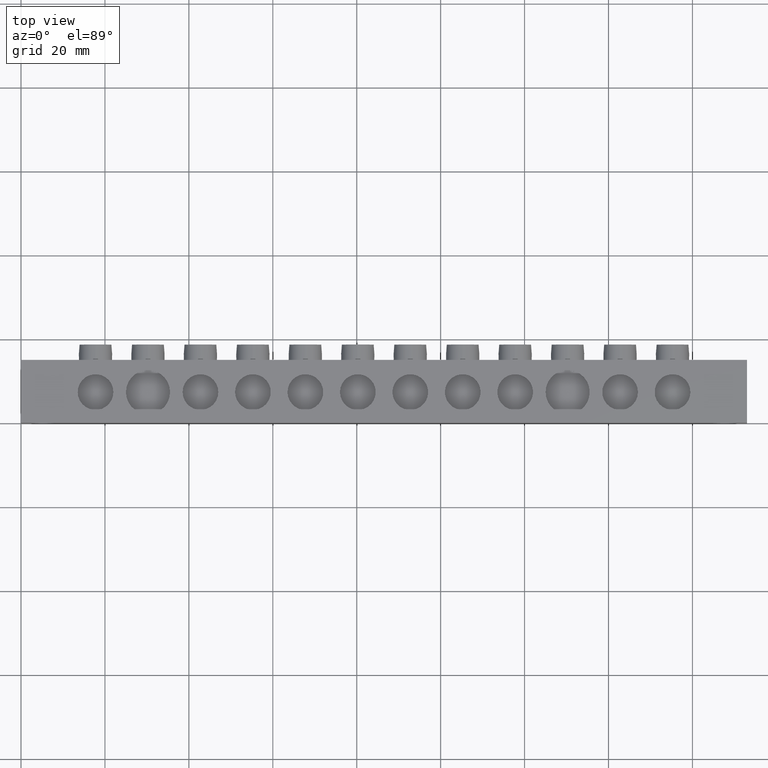
[diagram: clean part render]
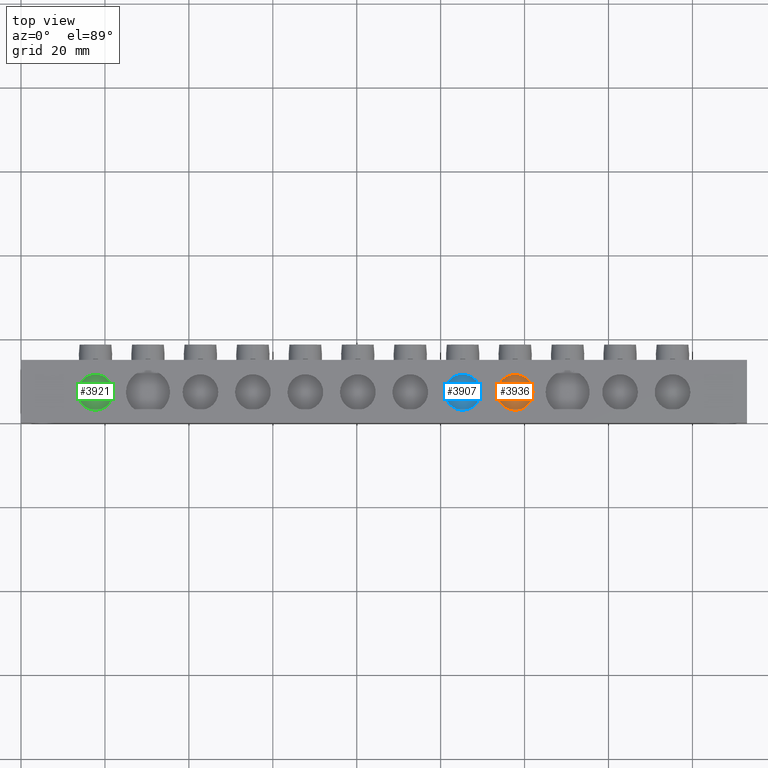
[diagram: same view with three faces highlighted in distinct colors, each labeled with its STEP entity id]
A machine part, top view with three faces highlighted in distinct colors.
Their STEP definitions:

[orange] entity #3936 — the highlighted planar face has unit normal (0, 0, -1).
#423 = CARTESIAN_POINT ( 'NONE',  ( 117.7500000000000300, 7.299999999999992700, -0.5000000000000004400 ) ) ;
#427 = DIRECTION ( 'NONE',  ( 0.0000000000000000000, 0.0000000000000000000, 1.000000000000000000 ) ) ;
#438 = DIRECTION ( 'NONE',  ( 1.000000000000000000, 0.0000000000000000000, 0.0000000000000000000 ) ) ;
#1793 = AXIS2_PLACEMENT_3D ( 'NONE', #423, #427, #438 ) ;
#1797 = CIRCLE ( 'NONE', #1793, 4.250000000000003600 ) ;
#2943 = CIRCLE ( 'NONE', #2982, 4.250000000000003600 ) ;
#2982 = AXIS2_PLACEMENT_3D ( 'NONE', #4697, #4722, #4709 ) ;
#3465 = AXIS2_PLACEMENT_3D ( 'NONE', #5526, #5567, #5522 ) ;
#3827 = CARTESIAN_POINT ( 'NONE',  ( 113.5000000000000100, 7.299999999999993600, -0.5000000000000004400 ) ) ;
#3936 = ADVANCED_FACE ( 'NONE', ( #6490 ), #5559, .F. ) ;
#4314 = EDGE_CURVE ( 'NONE', #7460, #7507, #2943, .T. ) ;
#4697 = CARTESIAN_POINT ( 'NONE',  ( 117.7500000000000300, 7.299999999999992700, -0.5000000000000004400 ) ) ;
#4709 = DIRECTION ( 'NONE',  ( 1.000000000000000000, 0.0000000000000000000, 0.0000000000000000000 ) ) ;
#4722 = DIRECTION ( 'NONE',  ( 0.0000000000000000000, 0.0000000000000000000, 1.000000000000000000 ) ) ;
#4888 = ORIENTED_EDGE ( 'NONE', *, *, #4314, .T. ) ;
#4937 = ORIENTED_EDGE ( 'NONE', *, *, #8230, .T. ) ;
#5522 = DIRECTION ( 'NONE',  ( -1.000000000000000000, 0.0000000000000000000, -0.0000000000000000000 ) ) ;
#5526 = CARTESIAN_POINT ( 'NONE',  ( 161.8674712474905800, 0.5000000000000038900, -0.5000000000000000000 ) ) ;
#5559 = PLANE ( 'NONE',  #3465 ) ;
#5567 = DIRECTION ( 'NONE',  ( 0.0000000000000000000, 0.0000000000000000000, -1.000000000000000000 ) ) ;
#6490 = FACE_OUTER_BOUND ( 'NONE', #6893, .T. ) ;
#6893 = EDGE_LOOP ( 'NONE', ( #4937, #4888 ) ) ;
#7460 = VERTEX_POINT ( 'NONE', #3827 ) ;
#7507 = VERTEX_POINT ( 'NONE', #7938 ) ;
#7938 = CARTESIAN_POINT ( 'NONE',  ( 122.0000000000000300, 7.299999999999992700, -0.5000000000000004400 ) ) ;
#8230 = EDGE_CURVE ( 'NONE', #7507, #7460, #1797, .T. ) ;

[blue] entity #3907 — the highlighted planar face has unit normal (0, 0, -1).
#1592 = PLANE ( 'NONE',  #3452 ) ;
#1617 = DIRECTION ( 'NONE',  ( -1.000000000000000000, 0.0000000000000000000, -0.0000000000000000000 ) ) ;
#1622 = FACE_OUTER_BOUND ( 'NONE', #6904, .T. ) ;
#1629 = DIRECTION ( 'NONE',  ( 0.0000000000000000000, 0.0000000000000000000, -1.000000000000000000 ) ) ;
#1639 = CARTESIAN_POINT ( 'NONE',  ( 161.8674712474905800, 0.5000000000000038900, -0.5000000000000000000 ) ) ;
#2527 = DIRECTION ( 'NONE',  ( 0.0000000000000000000, 0.0000000000000000000, 1.000000000000000000 ) ) ;
#2546 = DIRECTION ( 'NONE',  ( 1.000000000000000000, 0.0000000000000000000, 0.0000000000000000000 ) ) ;
#2563 = CARTESIAN_POINT ( 'NONE',  ( 105.2500000000000000, 7.299999999999989200, -0.5000000000000004400 ) ) ;
#2896 = AXIS2_PLACEMENT_3D ( 'NONE', #2563, #2527, #2546 ) ;
#2912 = CIRCLE ( 'NONE', #2896, 4.250000000000003600 ) ;
#2984 = CIRCLE ( 'NONE', #2985, 4.250000000000003600 ) ;
#2985 = AXIS2_PLACEMENT_3D ( 'NONE', #4686, #4708, #4723 ) ;
#3452 = AXIS2_PLACEMENT_3D ( 'NONE', #1639, #1629, #1617 ) ;
#3907 = ADVANCED_FACE ( 'NONE', ( #1622 ), #1592, .F. ) ;
#4264 = EDGE_CURVE ( 'NONE', #7482, #7485, #2912, .T. ) ;
#4306 = EDGE_CURVE ( 'NONE', #7485, #7482, #2984, .T. ) ;
#4686 = CARTESIAN_POINT ( 'NONE',  ( 105.2500000000000000, 7.299999999999989200, -0.5000000000000004400 ) ) ;
#4708 = DIRECTION ( 'NONE',  ( 0.0000000000000000000, 0.0000000000000000000, 1.000000000000000000 ) ) ;
#4723 = DIRECTION ( 'NONE',  ( 1.000000000000000000, 0.0000000000000000000, 0.0000000000000000000 ) ) ;
#4939 = ORIENTED_EDGE ( 'NONE', *, *, #4264, .T. ) ;
#4994 = ORIENTED_EDGE ( 'NONE', *, *, #4306, .T. ) ;
#6904 = EDGE_LOOP ( 'NONE', ( #4939, #4994 ) ) ;
#7482 = VERTEX_POINT ( 'NONE', #7902 ) ;
#7485 = VERTEX_POINT ( 'NONE', #7908 ) ;
#7902 = CARTESIAN_POINT ( 'NONE',  ( 109.5000000000000000, 7.299999999999989200, -0.5000000000000004400 ) ) ;
#7908 = CARTESIAN_POINT ( 'NONE',  ( 100.9999999999999900, 7.299999999999990100, -0.5000000000000004400 ) ) ;

[green] entity #3921 — the highlighted planar face has unit normal (0, 0, -1).
#1645 = FACE_OUTER_BOUND ( 'NONE', #6928, .T. ) ;
#1647 = CARTESIAN_POINT ( 'NONE',  ( 161.8674712474905800, 0.5000000000000038900, -0.5000000000000000000 ) ) ;
#1666 = DIRECTION ( 'NONE',  ( 0.0000000000000000000, 0.0000000000000000000, -1.000000000000000000 ) ) ;
#1679 = DIRECTION ( 'NONE',  ( -1.000000000000000000, 0.0000000000000000000, -0.0000000000000000000 ) ) ;
#1683 = PLANE ( 'NONE',  #3426 ) ;
#2469 = CARTESIAN_POINT ( 'NONE',  ( 17.75000000000000700, 7.299999999999998900, -0.5000000000000004400 ) ) ;
#2475 = DIRECTION ( 'NONE',  ( 0.0000000000000000000, 0.0000000000000000000, 1.000000000000000000 ) ) ;
#2477 = DIRECTION ( 'NONE',  ( 1.000000000000000000, 0.0000000000000000000, 0.0000000000000000000 ) ) ;
#2887 = CIRCLE ( 'NONE', #2890, 4.250000000000000000 ) ;
#2890 = AXIS2_PLACEMENT_3D ( 'NONE', #2469, #2475, #2477 ) ;
#2960 = AXIS2_PLACEMENT_3D ( 'NONE', #4504, #4498, #4506 ) ;
#2976 = CIRCLE ( 'NONE', #2960, 4.250000000000000000 ) ;
#3426 = AXIS2_PLACEMENT_3D ( 'NONE', #1647, #1666, #1679 ) ;
#3921 = ADVANCED_FACE ( 'NONE', ( #1645 ), #1683, .F. ) ;
#4245 = EDGE_CURVE ( 'NONE', #7578, #7531, #2887, .T. ) ;
#4324 = EDGE_CURVE ( 'NONE', #7531, #7578, #2976, .T. ) ;
#4498 = DIRECTION ( 'NONE',  ( 0.0000000000000000000, 0.0000000000000000000, 1.000000000000000000 ) ) ;
#4504 = CARTESIAN_POINT ( 'NONE',  ( 17.75000000000000700, 7.299999999999998900, -0.5000000000000004400 ) ) ;
#4506 = DIRECTION ( 'NONE',  ( 1.000000000000000000, 0.0000000000000000000, 0.0000000000000000000 ) ) ;
#4834 = ORIENTED_EDGE ( 'NONE', *, *, #4245, .T. ) ;
#4845 = ORIENTED_EDGE ( 'NONE', *, *, #4324, .T. ) ;
#6928 = EDGE_LOOP ( 'NONE', ( #4834, #4845 ) ) ;
#7531 = VERTEX_POINT ( 'NONE', #7943 ) ;
#7578 = VERTEX_POINT ( 'NONE', #7981 ) ;
#7943 = CARTESIAN_POINT ( 'NONE',  ( 13.50000000000000500, 7.299999999999999800, -0.5000000000000004400 ) ) ;
#7981 = CARTESIAN_POINT ( 'NONE',  ( 22.00000000000000700, 7.299999999999998900, -0.5000000000000004400 ) ) ;